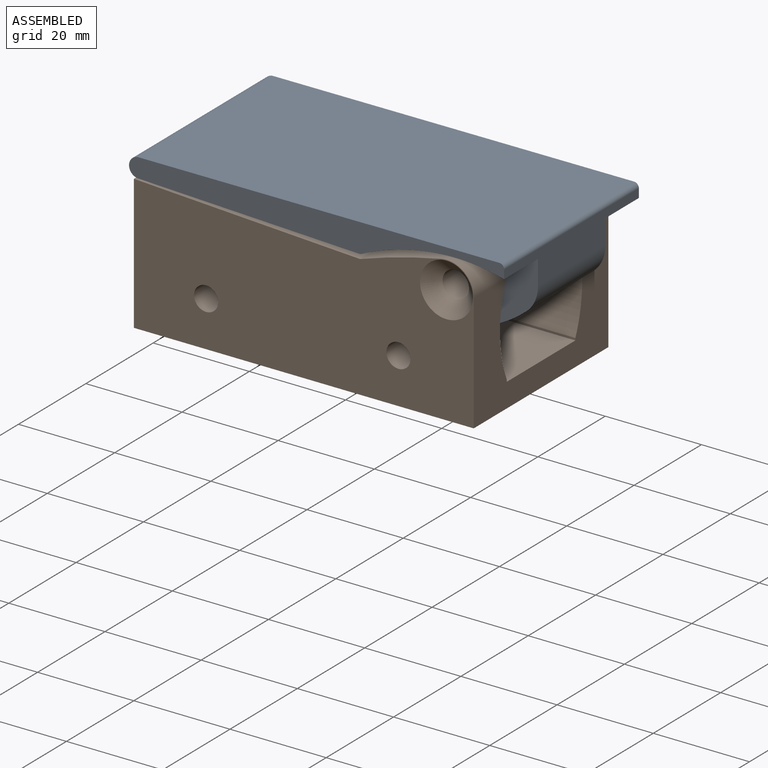
[diagram: assembled view]
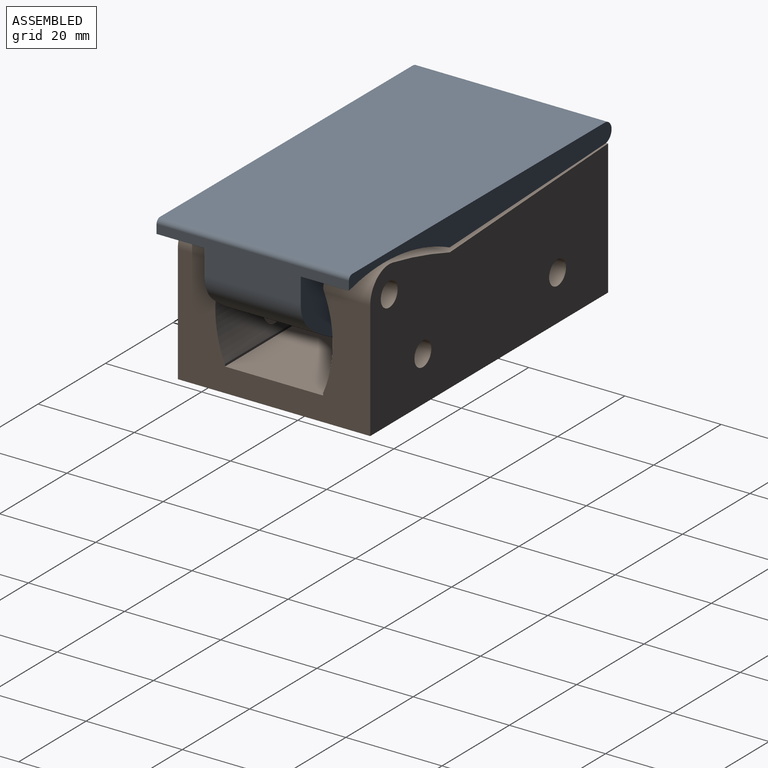
[diagram: assembled view, second angle]
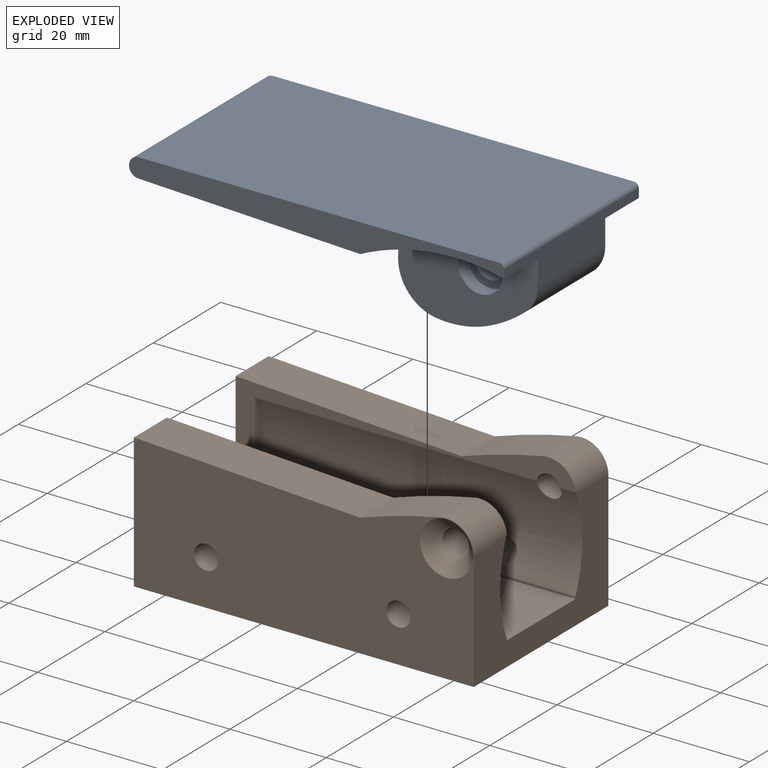
[diagram: exploded view]
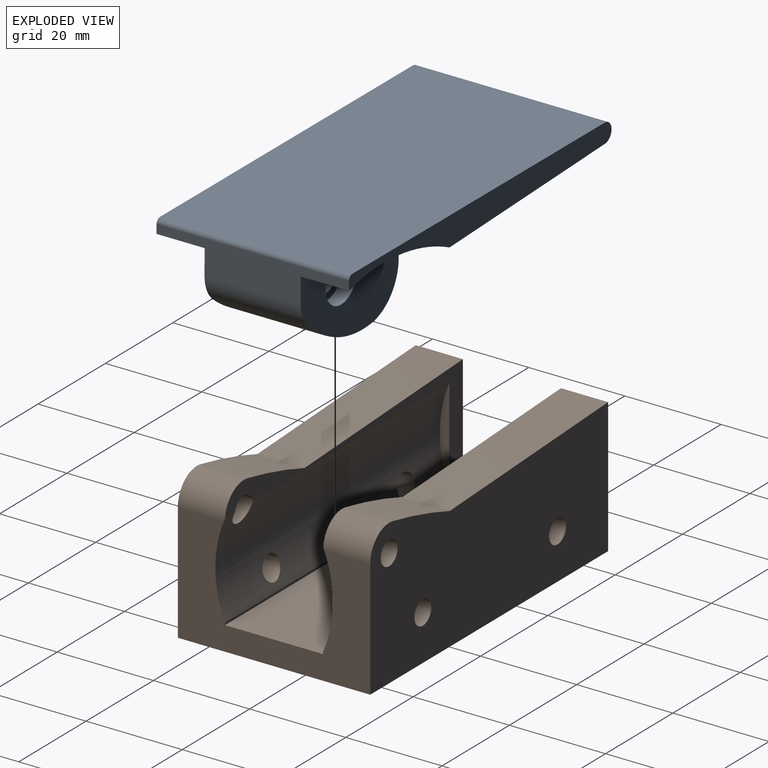
[diagram: exploded view, second angle]
FCSTD DOCUMENT  (FreeCAD 0.22R38506 (Git))
Label: push lever
License: All rights reserved
LicenseURL: http://en.wikipedia.org/wiki/All_rights_reserved
objects: Sketcher::SketchObject×15, PartDesign::Pocket×8, PartDesign::Body×7, PartDesign::Pad×6, PartDesign::Hole×4, PartDesign::SubShapeBinder×3, PartDesign::Line×3, Part::FeaturePython×2, PartDesign::Chamfer×2, App::Link×2, App::FeaturePython×2, PartDesign::AdditiveHelix×1, PartDesign::Mirrored×1, Assembly::JointGroup×1, Assembly::AssemblyObject×1, App::Part×1
note: 110 computed .brp shape members not serialized (recipe doc carries the construction recipe); baked Part::Feature solids carry a one-line shape summary decoded from their .brp

FEATURE [Sketcher::SketchObject] Sketch
  ArcFitTolerance = 0
  AttachmentSupport = -> [XZ_Plane]
  FullyConstrained = true
  MakeInternals = false
  MapMode = 5
  Placement = pos=(0,0,0) rot=(1,0,0;1.5708rad)
  sketch-geometry (15):
    g0: LineSegment StartX=-64 StartY=8 StartZ=0 EndX=11 EndY=8 EndZ=0
    g1: ArcOfCircle CenterX=11 CenterY=7 CenterZ=0 NormalX=0 NormalY=0 NormalZ=1 AngleXU=0 Radius=1 StartAngle=0 EndAngle=1.5708
    g2: LineSegment StartX=12 StartY=7 StartZ=0 EndX=12 EndY=-2.7e-15 EndZ=0
    g3: ArcOfCircle CenterX=5 CenterY=-9e-16 CenterZ=0 NormalX=0 NormalY=0 NormalZ=1 AngleXU=0 Radius=7 StartAngle=5.41052 EndAngle=6.28319
    g4: ArcOfCircle CenterX=-17.9719 CenterY=1.00094 CenterZ=0 NormalX=0 NormalY=0 NormalZ=1 AngleXU=0 Radius=1 StartAngle=6.24828 EndAngle=7.81064
    g5: LineSegment StartX=-17.9286 StartY=2 StartZ=0 EndX=-64.0867 EndY=4.00188 EndZ=0
    g6: ArcOfCircle CenterX=-64 CenterY=6 CenterZ=0 NormalX=0 NormalY=0 NormalZ=1 AngleXU=0 Radius=2 StartAngle=1.5708 EndAngle=4.66905
    g7: Circle CenterX=0 CenterY=0 CenterZ=0 NormalX=0 NormalY=0 NormalZ=1 AngleXU=0 Radius=3.1
    g8: LineSegment StartX=-16.9725 StartY=0.96604 StartZ=0 EndX=-17.0772 EndY=-2.03213 EndZ=0
    g9: LineSegment [constr] StartX=0 StartY=0 StartZ=0 EndX=12 EndY=-2.6e-15 EndZ=0
    g10: LineSegment [constr] StartX=0 StartY=0 StartZ=0 EndX=0 EndY=8 EndZ=0
    g11: LineSegment [constr] StartX=-17.9286 StartY=2 StartZ=0 EndX=-17.9286 EndY=8 EndZ=0
    g12: ArcOfCircle CenterX=-9.78412 CenterY=17.619 CenterZ=0 NormalX=0 NormalY=0 NormalZ=1 AngleXU=0 Radius=30 StartAngle=5.11381 EndAngle=5.41052
    g13: ArcOfCircle CenterX=-7.84005 CenterY=-2.3547 CenterZ=0 NormalX=0 NormalY=0 NormalZ=1 AngleXU=0 Radius=9.24281 StartAngle=3.10669 EndAngle=4.59022
    g14: ArcOfCircle CenterX=-6.374 CenterY=9.58529 CenterZ=0 NormalX=0 NormalY=0 NormalZ=1 AngleXU=0 Radius=21.2725 StartAngle=4.59022 EndAngle=5.11381
  constraints (39):
    c: Tangent(g0,g1) = 1.5708
    c: Tangent(g1,g2) = 1.5708
    c: Tangent(g5,g6) = 1.5708
    c: Tangent(g6,g0) = 1.5708
    c: Radius(g6) = 2
    c: Radius(g1) = 1
    c: Diameter(g7) = 6.2
    c: Distance(g8) = 3
    c: Perpendicular(g2,g9)
    c: PointOnObject(g10,g0)
    c: Perpendicular(g10,g0)
    c: Coincident(g2,g9)
    c: Perpendicular(g0,g2)
    c: Tangent(g3,g2) = 1.5708
    c: Angle(g0,g8) = 1.53589
    c: Coincident(g7,g-1)
    c: Coincident(g9,g10)
    c: Coincident(g9,g7)
    c: Distance(g9) = 12
    c: Tangent(g4,g5) = -1.5708
    c: Distance(g8,g7) = 17
    c: Radius(g4) = 1
    c: Tangent(g4,g8) = 1.5708
    c: Coincident(g11,g4)
    c: PointOnObject(g11,g0)
    c: Perpendicular(g0,g11)
    c: Distance(g11) = 6
    c: Distance(g10) = 8
    c: Distance(g0,g10) = 64
    c: Horizontal(g0)
    c: Tangent(g12,g3) = -1.5708
    c: Tangent(g13,g8) = -1.5708
    c: Angle(g3) = 0.872665
    c: Radius(g3) = 7
    c: Tangent(g14,g13) = -1.5708
    c: Tangent(g14,g12) = -1.5708
    c: Angle(g13) = 1.48353
    c: Angle(g14) = 0.523599
    c: Radius(g12) = 30
FEATURE [Sketcher::SketchObject] Sketch001
  ArcFitTolerance = 0
  AttachmentOffset = pos=(0,0,10) rot=(0,0,1;0rad)
  AttachmentSupport = -> [XZ_Plane]
  FullyConstrained = true
  MakeInternals = false
  MapMode = 5
  Placement = pos=(0,-10,2.2e-15) rot=(1,0,0;1.5708rad)
  expr: .AttachmentOffset.Base.z = -<<Sketch007>>.Placement.Base.y - <<Pocket001>>.Length
  sketch-geometry (1):
    g0: Circle CenterX=0 CenterY=0 CenterZ=0 NormalX=0 NormalY=0 NormalZ=1 AngleXU=0 Radius=4.6
  constraints (2):
    c: Diameter(g0) = 9.2
    c: Coincident(g0,g-1)
FEATURE [Sketcher::SketchObject] Sketch003  label="Bearing sketch"
  ArcFitTolerance = 0
  AttachmentSupport = -> [XZ_Plane001]
  FullyConstrained = true
  MakeInternals = false
  MapMode = 5
  Placement = pos=(0,0,0) rot=(1,0,0;1.5708rad)
  sketch-geometry (2):
    g0: Circle CenterX=0 CenterY=0 CenterZ=0 NormalX=0 NormalY=0 NormalZ=1 AngleXU=0 Radius=4.5
    g1: Circle CenterX=0 CenterY=0 CenterZ=0 NormalX=0 NormalY=0 NormalZ=1 AngleXU=0 Radius=2.5
  constraints (4):
    c: Diameter(g0) = 9
    c: Coincident(g0,g-1)
    c: Coincident(g1,g0)
    c: Diameter(g1) = 5
FEATURE [PartDesign::Pad] Pad001
  Direction = (0,-1,2e-16)
  Length = 3
  Length2 = 10
  Midplane = true
  Placement = pos=(0,0,0) rot=(1,0,0;1.5708rad)
  Profile = -> Sketch003
  ReferenceAxis = -> Sketch003 [N_Axis]
  Suppressed = false
  Type = 0
FEATURE [PartDesign::Body] Body001  label="Bearing"
  AllowCompound = false
  Group = -> [Sketch003,Pad001]
  Origin = -> Origin001
  Placement = pos=(0,-8.5,0) rot=(0,0,1;0rad)
  Tip = -> Pad001
FEATURE [PartDesign::Pad] Pad
  Direction = (0,-1,2e-16)
  Length = 40
  Length2 = 10
  Midplane = true
  Placement = pos=(0,0,0) rot=(1,0,0;1.5708rad)
  Profile = -> Sketch
  ReferenceAxis = -> Sketch [N_Axis]
  Suppressed = false
  Type = 0
FEATURE [Sketcher::SketchObject] Sketch005
  ArcFitTolerance = 0
  AttachmentSupport = -> [XZ_Plane003]
  FullyConstrained = true
  MakeInternals = false
  MapMode = 5
  Placement = pos=(0,0,0) rot=(1,0,0;1.5708rad)
  sketch-geometry (2):
    g0: Circle CenterX=0 CenterY=3.1 CenterZ=0 NormalX=0 NormalY=0 NormalZ=1 AngleXU=0 Radius=0.6
    g1: LineSegment [constr] StartX=0 StartY=2.5 StartZ=0 EndX=0 EndY=0 EndZ=0
  constraints (6):
    c: Diameter(g0) = 1.2
    c: PointOnObject(g0,g-2)
    c: PointOnObject(g1,g0)
    c: Coincident(g1,g-1)
    c: Vertical(g1)
    c: DistanceY(g1,g1) = 2.5
FEATURE [PartDesign::AdditiveHelix] AdditiveHelix
  Angle = 0
  Axis = (1,0,0)
  Base = (0,0,0)
  Growth = 0
  HasBeenEdited = true
  Height = 19
  LeftHanded = false
  Mode = 2
  Outside = false
  Pitch = 2.11111
  Placement = pos=(0,0,0) rot=(1,0,0;1.5708rad)
  Profile = -> Sketch005
  ReferenceAxis = -> Sketch005 [H_Axis]
  Suppressed = false
  Turns = 9
FEATURE [PartDesign::Body] Body003  label="Spring"
  AllowCompound = false
  Group = -> [Sketch005,AdditiveHelix]
  Origin = -> Origin003
  Placement = pos=(-53.5,0,-9.5) rot=(0,0,1;0rad)
  Tip = -> AdditiveHelix
FEATURE [Part::FeaturePython] Screw001  label="M6x40-Parafuso"  # Fasteners workbench fastener (typed FeaturePython)
  Placement = pos=(-17,0,-9.5) rot=(0,1,0;1.5708rad)
  diameter = 6
  invert = false
  leftHanded = false
  length = 13
  lengthCustom = 40
  matchOuter = false
  offset = 0
  thread = false
  type = 31
FEATURE [Part::FeaturePython] Washer  label="M6-Arruela"  # Fasteners workbench fastener (typed FeaturePython)
  Placement = pos=(-34,0,-9.5) rot=(0,1,0;1.5708rad)
  diameter = 7
  invert = false
  matchOuter = false
  offset = 0
  type = 7
FEATURE [Sketcher::SketchObject] Sketch007
  ArcFitTolerance = 0
  AttachmentOffset = pos=(0,0,20) rot=(0,0,1;0rad)
  AttachmentSupport = -> [XZ_Plane]
  FullyConstrained = false
  MakeInternals = false
  MapMode = 5
  Placement = pos=(0,-20,4.4e-15) rot=(1,0,0;1.5708rad)
  expr: .AttachmentOffset.Base.z = <<Pad>>.Length / 2
  sketch-geometry (5):
    g0: LineSegment StartX=12 StartY=5.18435 StartZ=0 EndX=12 EndY=-34.8156 EndZ=0
    g1: LineSegment StartX=12 StartY=-34.8156 StartZ=0 EndX=-17.9286 EndY=-34.8156 EndZ=0
    g2: LineSegment StartX=-17.9286 StartY=2 StartZ=0 EndX=-17.9286 EndY=-34.8156 EndZ=0
    g3: ArcOfCircle CenterX=1.93151 CenterY=-39.1603 CenterZ=0 NormalX=0 NormalY=0 NormalZ=1 AngleXU=0 Radius=45.7011 StartAngle=1.61307 EndAngle=2.02035
    g4: ArcOfCircle CenterX=1.69055 CenterY=-33.4643 CenterZ=0 NormalX=0 NormalY=0 NormalZ=1 AngleXU=0 Radius=40 StartAngle=1.31012 EndAngle=1.61307
  constraints (11):
    c: Coincident(g1,g0)
    c: Coincident(g1,g2)
    c: Perpendicular(g1,g0)
    c: Perpendicular(g2,g1)
    c: Distance(g0) = 40
    c: Coincident(g3,g2)
    c: PointOnObject(g3,g-2)
    c: Coincident(g4,g0)
    c: Tangent(g4,g3) = -1.5708
    c: Distance(g-1,g3) = 6.5
    c: Radius(g4) = 40
FEATURE [PartDesign::Pocket] Pocket001
  BaseFeature = -> Pad
  Direction = (0,1,-2e-16)
  Length = 10
  Length2 = 5
  Placement = pos=(0,0,0) rot=(1,0,0;1.5708rad)
  Profile = -> Sketch007
  ReferenceAxis = -> Sketch007 [N_Axis]
  Suppressed = false
  Type = 0
FEATURE [PartDesign::Pocket] Pocket
  BaseFeature = -> Pocket001
  Direction = (0,1,-2e-16)
  Length = 3
  Length2 = 5
  Placement = pos=(0,0,0) rot=(1,0,0;1.5708rad)
  Profile = -> Sketch001
  ReferenceAxis = -> Sketch001 [N_Axis]
  Suppressed = false
  Type = 0
FEATURE [PartDesign::Mirrored] Mirrored
  BaseFeature = -> Pocket
  MirrorPlane = -> XZ_Plane
  Originals = -> [Pocket,Pocket001]
  Placement = pos=(0,0,0) rot=(1,0,0;1.5708rad)
  Suppressed = false
  TransformMode = 0
FEATURE [Sketcher::SketchObject] Sketch009
  ArcFitTolerance = 0
  AttachmentSupport = -> [XZ_Plane002]
  FullyConstrained = true
  MakeInternals = false
  MapMode = 5
  Placement = pos=(0,0,0) rot=(1,0,0;1.5708rad)
  sketch-geometry (7):
    g0: LineSegment StartX=-18 StartY=1 StartZ=0 EndX=-65 EndY=3.5 EndZ=0
    g1: LineSegment StartX=-65 StartY=3.5 StartZ=0 EndX=-65 EndY=-24.5 EndZ=0
    g2: LineSegment StartX=-65 StartY=-24.5 StartZ=0 EndX=5.65 EndY=-24.5 EndZ=0
    g3: LineSegment StartX=5.65 StartY=-24.5 StartZ=0 EndX=5.65 EndY=0 EndZ=0
    g4: ArcOfCircle CenterX=22.8133 CenterY=-117.149 CenterZ=0 NormalX=0 NormalY=0 NormalZ=1 AngleXU=0 Radius=125 StartAngle=1.76313 EndAngle=1.9034
    g5: Circle [constr] CenterX=0 CenterY=0 CenterZ=0 NormalX=0 NormalY=0 NormalZ=1 AngleXU=0 Radius=5.65
    g6: ArcOfCircle CenterX=0 CenterY=0 CenterZ=0 NormalX=0 NormalY=0 NormalZ=1 AngleXU=0 Radius=5.65 StartAngle=0 EndAngle=1.76313
  constraints (19):
    c: Coincident(g0,g1)
    c: Vertical(g1)
    c: Coincident(g1,g2)
    c: Horizontal(g2)
    c: Coincident(g2,g3)
    c: Coincident(g4,g0)
    c: Radius(g4) = 125
    c: DistanceY(g1,g1) = 28  'height'
    c: DistanceX(g0,g0) = 47
    c: DistanceY(g2,g-1) = 24.5  'bottom'
    c: DistanceY(g-1,g0) = 1
    c: Coincident(g5,g-1)
    c: Coincident(g6,g5)
    c: PointOnObject(g6,g5)
    c: Tangent(g6,g4) = -1.5708
    c: Diameter(g5) = 11.3
    c: Tangent(g3,g6) = -1.5708
    c: DistanceX(g1,g5) = 65  'x1'
    c: Perpendicular(g2,g3)
FEATURE [PartDesign::Pad] Pad002
  Direction = (0,-1,2e-16)
  Length = 40
  Length2 = 10
  Midplane = true
  Placement = pos=(0,0,0) rot=(1,0,0;1.5708rad)
  Profile = -> Sketch009
  ReferenceAxis = -> Sketch009 [N_Axis]
  Suppressed = false
  Type = 0
  expr: Length = <<Pad>>.Length
FEATURE [Sketcher::SketchObject] Sketch011  label="Lever axis hole sketch"
  ArcFitTolerance = 0
  AttachmentOffset = pos=(0,0,20) rot=(0,0,1;0rad)
  AttachmentSupport = -> [XZ_Plane002]
  FullyConstrained = true
  MakeInternals = false
  MapMode = 5
  Placement = pos=(0,-20,4.4e-15) rot=(1,0,0;1.5708rad)
  expr: .AttachmentOffset.Base.z = <<Pad002>>.Length / 2
  sketch-geometry (1):
    g0: Circle CenterX=0 CenterY=0 CenterZ=0 NormalX=0 NormalY=0 NormalZ=1 AngleXU=0 Radius=2.5
  constraints (2):
    c: Coincident(g0,g-1)
    c: Diameter(g0) = 5
FEATURE [Sketcher::SketchObject] Sketch015  label="Guide rail sketch"
  ArcFitTolerance = 0
  AttachmentOffset = pos=(0,0,-61) rot=(0,0,1;0rad)
  AttachmentSupport = -> [YZ_Plane002]
  FullyConstrained = false
  MakeInternals = false
  MapMode = 5
  Placement = pos=(-61,0,0) rot=(0.57735,0.57735,0.57735;2.0944rad)
  expr: .AttachmentOffset.Base.z = -<<Sketch009>>.Constraints.x1 + 4 mm
  sketch-geometry (4):
    g0: ArcOfCircle CenterX=12.8021 CenterY=-9.25 CenterZ=0 NormalX=0 NormalY=0 NormalZ=1 AngleXU=0 Radius=25 StartAngle=2.71914 EndAngle=3.56405
    g1: ArcOfCircle CenterX=-12.8021 CenterY=-9.25 CenterZ=0 NormalX=0 NormalY=0 NormalZ=1 AngleXU=0 Radius=25 StartAngle=5.86073 EndAngle=6.70564
    g2: LineSegment StartX=10 StartY=-19.5 StartZ=0 EndX=-10 EndY=-19.5 EndZ=0
    g3: LineSegment StartX=-10 StartY=1 StartZ=0 EndX=10 EndY=1 EndZ=0
  constraints (10):
    c: Coincident(g0,g2)
    c: Coincident(g1,g2)
    c: Symmetric(g1,g0,g-2)
    c: Radius(g1) = 25
    c: Equal(g0,g1)
    c: DistanceX(g2,g2) = 20
    c: Horizontal(g1,g0)
    c: Vertical(g0,g0)
    c: Coincident(g3,g0)
    c: Coincident(g3,g1)
FEATURE [Sketcher::SketchObject] Sketch016
  ArcFitTolerance = 0
  AttachmentSupport = -> [YZ_Plane002]
  FullyConstrained = false
  MakeInternals = false
  MapMode = 5
  Placement = pos=(0,0,0) rot=(0.57735,0.57735,0.57735;2.0944rad)
  expr: .Constraints.width = <<Pad>>.Length - 2 * <<Pocket001>>.Length + 0.4 mm
  sketch-geometry (4):
    g0: LineSegment StartX=-10.2 StartY=50.5 StartZ=0 EndX=-10.2 EndY=-19.5 EndZ=0
    g1: LineSegment StartX=-10.2 StartY=-19.5 StartZ=0 EndX=10.2 EndY=-19.5 EndZ=0
    g2: LineSegment StartX=10.2 StartY=-19.5 StartZ=0 EndX=10.2 EndY=50.5 EndZ=0
    g3: LineSegment StartX=10.2 StartY=50.5 StartZ=0 EndX=-10.2 EndY=50.5 EndZ=0
  constraints (10):
    c: Coincident(g0,g1)
    c: Coincident(g1,g2)
    c: Coincident(g2,g3)
    c: Coincident(g3,g0)
    c: Vertical(g0)
    c: Vertical(g2)
    c: Horizontal(g1)
    c: Symmetric(g2,g0,g-2)
    c: DistanceY(g2,g2) = 70
    c: DistanceX(g1,g1) = 20.4  'width'
FEATURE [PartDesign::Pocket] Pocket006
  BaseFeature = -> Pad002
  Direction = (-1,0,0)
  Length = 5
  Length2 = 5
  Midplane = true
  Placement = pos=(0,0,0) rot=(1,0,0;1.5708rad)
  Profile = -> Sketch016
  ReferenceAxis = -> Sketch016 [N_Axis]
  Suppressed = false
  Type = 1
FEATURE [PartDesign::Pocket] Pocket003  label="Lever axis hole"
  BaseFeature = -> Pocket006
  Direction = (0,1,-2e-16)
  Length = 5
  Length2 = 5
  Placement = pos=(0,0,0) rot=(1,0,0;1.5708rad)
  Profile = -> Sketch011
  ReferenceAxis = -> Sketch011 [N_Axis]
  Suppressed = false
  Type = 1
FEATURE [PartDesign::Hole] Hole001  label="Lever axis hole enlarge one side"
  BaseFeature = -> Pocket003
  CustomThreadClearance = 0
  Depth = 20
  DepthType = 0
  Diameter = 5.5
  DrillForDepth = false
  DrillPoint = 1
  DrillPointAngle = 118
  HoleCutCountersinkAngle = 90
  HoleCutCustomValues = false
  HoleCutDepth = 0
  HoleCutDiameter = 11
  HoleCutType = 2
  ModelThread = false
  Placement = pos=(0,0,0) rot=(1,0,0;1.5708rad)
  Profile = -> Sketch011
  Suppressed = false
  Tapered = false
  TaperedAngle = 90
  ThreadClass = 0
  ThreadDepth = 20
  ThreadDepthType = 0
  ThreadDirection = 0
  ThreadFit = 0
  ThreadSize = 0
  ThreadType = 0
  Threaded = false
  UseCustomThreadClearance = false
  expr: Depth = <<Pad002>>.Length / 2
FEATURE [PartDesign::Pocket] Pocket005  label="Guide rail pocket"
  BaseFeature = -> Hole001
  Direction = (-1,0,0)
  Length = 5
  Length2 = 5
  Placement = pos=(0,0,0) rot=(1,0,0;1.5708rad)
  Profile = -> Sketch015
  ReferenceAxis = -> Sketch015 [N_Axis]
  Refine = true
  Reversed = true
  Suppressed = false
  Type = 1
FEATURE [PartDesign::SubShapeBinder] Binder001
  BindCopyOnChange = 0
  BindMode = 0
  ClaimChildren = false
  Context = -> Part [Body005.Binder001.]
  Fuse = false
  MakeFace = true
  Offset = -0.15
  OffsetFill = false
  OffsetIntersection = false
  OffsetJoinType = 0
  OffsetOpenResult = false
  PartialLoad = false
  Placement = pos=(-12,0,0) rot=(0,0,1;0rad)
  Relative = true
  Support = -> [Body002[Sketch015.]]
  _Version = 2
FEATURE [Sketcher::SketchObject] Sketch013
  ArcFitTolerance = 0
  AttachmentOffset = pos=(0,0,22) rot=(0,0,1;0rad)
  AttachmentSupport = -> [Binder001]
  ExternalGeometry = -> [Binder001]
  FullyConstrained = true
  MakeInternals = false
  MapMode = 5
  Placement = pos=(-51,0,0) rot=(0.57735,0.57735,0.57735;2.0944rad)
  expr: .AttachmentOffset.Base.z = <<Pad003>>.Length
  sketch-geometry (2):
    g0: Circle CenterX=0 CenterY=-9.25 CenterZ=0 NormalX=0 NormalY=0 NormalZ=1 AngleXU=0 Radius=3.5
    g1: LineSegment [constr] StartX=0 StartY=0.85 StartZ=0 EndX=0 EndY=-19.35 EndZ=0
  constraints (6):
    c: PointOnObject(g0,g-2)
    c: Diameter(g0) = 7
    c: PointOnObject(g1,g-2)
    c: Symmetric(g1,g1,g0)
    c: PointOnObject(g1,g-3)
    c: PointOnObject(g1,g-4)
FEATURE [PartDesign::Pad] Pad003
  Direction = (1,0,0)
  Length = 22
  Length2 = 10
  Placement = pos=(-12,0,0) rot=(0,0,1;0rad)
  Profile = -> Binder001
  Suppressed = false
  Type = 0
FEATURE [PartDesign::Hole] Hole002
  BaseFeature = -> Pad003
  CustomThreadClearance = 0
  Depth = 75.2743
  DepthType = 1
  Diameter = 6
  DrillForDepth = false
  DrillPoint = 1
  DrillPointAngle = 118
  HoleCutCountersinkAngle = 90
  HoleCutCustomValues = false
  HoleCutDepth = 4
  HoleCutDiameter = 16
  HoleCutType = 1
  ModelThread = false
  Placement = pos=(-12,0,0) rot=(0,0,1;0rad)
  Profile = -> Sketch013
  Suppressed = false
  Tapered = false
  TaperedAngle = 90
  ThreadClass = 0
  ThreadDepth = 75.2743
  ThreadDepthType = 0
  ThreadDirection = 0
  ThreadFit = 0
  ThreadSize = 0
  ThreadType = 0
  Threaded = false
  UseCustomThreadClearance = false
FEATURE [PartDesign::Chamfer] Chamfer
  Angle = 45
  Base = -> Hole002 [?Face7]
  BaseFeature = -> Hole002
  ChamferType = 0
  FlipDirection = false
  Placement = pos=(-12,0,0) rot=(0,0,1;0rad)
  Size = 0.3
  Size2 = 1
  SupportTransform = false
  Suppressed = false
  UseAllEdges = true
FEATURE [PartDesign::SubShapeBinder] Binder002
  BindCopyOnChange = 0
  BindMode = 0
  ClaimChildren = false
  Context = -> Part [Body007.Binder002.]
  Fuse = false
  MakeFace = true
  Offset = -0.15
  OffsetFill = false
  OffsetIntersection = false
  OffsetJoinType = 0
  OffsetOpenResult = false
  PartialLoad = false
  Placement = pos=(18.8,0,0) rot=(0,0,1;0rad)
  Relative = true
  Support = -> [Body002[Sketch015.]]
  _Version = 2
FEATURE [Sketcher::SketchObject] Sketch019
  ArcFitTolerance = 0
  AttachmentSupport = -> [XZ_Plane007]
  ExternalGeometry = -> [Binder002]
  FullyConstrained = true
  MakeInternals = false
  MapMode = 5
  Placement = pos=(0,0,0) rot=(1,0,0;1.5708rad)
  expr: Constraints[10] = <<Pad004>>.Length
  sketch-geometry (6):
    g0: LineSegment StartX=-20.2567 StartY=0.492788 StartZ=0 EndX=-17.2 EndY=-3.15 EndZ=0
    g1: ArcOfCircle CenterX=-21.0227 CenterY=-0.15 CenterZ=0 NormalX=0 NormalY=0 NormalZ=1 AngleXU=0 Radius=1 StartAngle=0.698132 EndAngle=1.5708
    g2: LineSegment StartX=-21.0227 StartY=0.85 StartZ=0 EndX=-42.2 EndY=0.85 EndZ=0
    g3: LineSegment StartX=-42.2 StartY=0.85 StartZ=0 EndX=-42.2 EndY=10.85 EndZ=0
    g4: LineSegment StartX=-42.2 StartY=10.85 StartZ=0 EndX=-17.2 EndY=10.85 EndZ=0
    g5: LineSegment StartX=-17.2 StartY=10.85 StartZ=0 EndX=-17.2 EndY=-3.15 EndZ=0
  constraints (16):
    c: Tangent(g1,g0) = 1.5708
    c: Radius(g1) = 1
    c: Coincident(g3,g2)
    c: Vertical(g3)
    c: Coincident(g4,g3)
    c: Horizontal(g4)
    c: Coincident(g5,g4)
    c: Coincident(g5,g0)
    c: Vertical(g5)
    c: Horizontal(g2)
    c: DistanceX(g4,g4) = 25
    c: Angle(g5,g0) = 0.698132
    c: DistanceY(g3,g3) = 10
    c: DistanceY(g5,g5) = 14
    c: Tangent(g2,g1) = -1.5708
    c: Coincident(g2,g-3)
FEATURE [PartDesign::SubShapeBinder] Binder003
  BindCopyOnChange = 0
  BindMode = 0
  ClaimChildren = false
  Context = -> Part [Body007.Binder003.]
  Fuse = false
  MakeFace = true
  OffsetFill = false
  OffsetIntersection = false
  OffsetJoinType = 0
  OffsetOpenResult = false
  PartialLoad = false
  Placement = pos=(-25,0,0) rot=(0,0,1;0rad)
  Relative = true
  Support = -> [Sketch020]
  _Version = 2
  expr: .Placement.Base.x = -<<Pad004>>.Length
FEATURE [PartDesign::Pad] Pad004
  Direction = (1,0,0)
  Length = 25
  Length2 = 10
  Placement = pos=(18.8,0,0) rot=(0,0,1;0rad)
  Profile = -> Binder002
  Suppressed = false
  Type = 0
FEATURE [PartDesign::Hole] Hole004
  BaseFeature = -> Pad004
  CustomThreadClearance = 0
  Depth = 71.9523
  DepthType = 1
  Diameter = 5
  DrillForDepth = false
  DrillPoint = 0
  DrillPointAngle = 118
  HoleCutCountersinkAngle = 90
  HoleCutCustomValues = false
  HoleCutDepth = 10
  HoleCutDiameter = 16.1
  HoleCutType = 1
  ModelThread = false
  Placement = pos=(18.8,0,0) rot=(0,0,1;0rad)
  Profile = -> Binder003
  Reversed = true
  Suppressed = false
  Tapered = false
  TaperedAngle = 90
  ThreadClass = 0
  ThreadDepth = 71.9523
  ThreadDepthType = 0
  ThreadDirection = 0
  ThreadFit = 0
  ThreadSize = 0
  ThreadType = 0
  Threaded = false
  UseCustomThreadClearance = false
FEATURE [PartDesign::Chamfer] Chamfer002
  Angle = 45
  Base = -> Hole004 [?Face7]
  BaseFeature = -> Hole004
  ChamferType = 0
  FlipDirection = false
  Placement = pos=(18.8,0,0) rot=(0,0,1;0rad)
  Size = 0.3
  Size2 = 1
  SupportTransform = false
  Suppressed = false
  UseAllEdges = true
FEATURE [Sketcher::SketchObject] Sketch020
  ArcFitTolerance = 0
  AttachmentOffset = pos=(0,0,25) rot=(0,0,1;0rad)
  AttachmentSupport = -> [Binder002]
  ExternalGeometry = -> [Binder002]
  FullyConstrained = true
  MakeInternals = false
  MapMode = 5
  Placement = pos=(-17.2,0,0) rot=(0.57735,0.57735,0.57735;2.0944rad)
  expr: .AttachmentOffset.Base.z = <<Pad004>>.Length
  sketch-geometry (2):
    g0: Circle CenterX=0 CenterY=-9.25 CenterZ=0 NormalX=0 NormalY=0 NormalZ=1 AngleXU=0 Radius=3.5
    g1: LineSegment [constr] StartX=0 StartY=0.85 StartZ=0 EndX=0 EndY=-19.35 EndZ=0
  constraints (6):
    c: PointOnObject(g0,g-2)
    c: Diameter(g0) = 7
    c: PointOnObject(g1,g-2)
    c: Symmetric(g1,g1,g0)
    c: PointOnObject(g1,g-3)
    c: PointOnObject(g1,g-4)
FEATURE [PartDesign::Hole] Hole003
  BaseFeature = -> Chamfer002
  CustomThreadClearance = 0
  Depth = 73.3723
  DepthType = 1
  Diameter = 5
  DrillForDepth = false
  DrillPoint = 1
  DrillPointAngle = 118
  HoleCutCountersinkAngle = 90
  HoleCutCustomValues = false
  HoleCutDepth = 1.6
  HoleCutDiameter = 10.5
  HoleCutType = 2
  ModelThread = false
  Placement = pos=(18.8,0,0) rot=(0,0,1;0rad)
  Profile = -> Sketch020
  Suppressed = false
  Tapered = false
  TaperedAngle = 90
  ThreadClass = 0
  ThreadDepth = 73.3723
  ThreadDepthType = 0
  ThreadDirection = 0
  ThreadFit = 0
  ThreadSize = 0
  ThreadType = 0
  Threaded = false
  UseCustomThreadClearance = false
FEATURE [PartDesign::Pocket] Pocket009
  BaseFeature = -> Hole003
  Direction = (0,1,-2e-16)
  Length = 5
  Length2 = 5
  Midplane = true
  Placement = pos=(18.8,0,0) rot=(0,0,1;0rad)
  Profile = -> Sketch019
  ReferenceAxis = -> Sketch019 [N_Axis]
  Suppressed = false
  Type = 1
FEATURE [PartDesign::Body] Body007  label="Pushblock inner"
  AllowCompound = false
  Group = -> [Pad004,Binder002,Hole004,Chamfer002,Binder003,Sketch020,Hole003,Sketch019,Pocket009]
  Origin = -> Origin007
  Tip = -> Pocket009
FEATURE [Sketcher::SketchObject] Sketch021
  ArcFitTolerance = 0
  AttachmentOffset = pos=(0,0,-61) rot=(0,0,1;0rad)
  AttachmentSupport = -> [YZ_Plane005]
  FullyConstrained = true
  MakeInternals = false
  MapMode = 5
  Placement = pos=(-61,0,0) rot=(0.57735,0.57735,0.57735;2.0944rad)
  expr: .AttachmentOffset.Base.z = <<Guide rail sketch>>.Placement.Base.x
  expr: Constraints[16] = <<Pad>>.Length - 2 * <<Pocket001>>.Length
  sketch-geometry (8):
    g0: LineSegment StartX=-50 StartY=50 StartZ=0 EndX=-50 EndY=-50 EndZ=0
    g1: LineSegment StartX=-50 StartY=-50 StartZ=0 EndX=50 EndY=-50 EndZ=0
    g2: LineSegment StartX=50 StartY=-50 StartZ=0 EndX=50 EndY=50 EndZ=0
    g3: LineSegment StartX=50 StartY=50 StartZ=0 EndX=-50 EndY=50 EndZ=0
    g4: LineSegment StartX=-10 StartY=30 StartZ=0 EndX=-10 EndY=-30 EndZ=0
    g5: LineSegment StartX=-10 StartY=-30 StartZ=0 EndX=10 EndY=-30 EndZ=0
    g6: LineSegment StartX=10 StartY=-30 StartZ=0 EndX=10 EndY=30 EndZ=0
    g7: LineSegment StartX=10 StartY=30 StartZ=0 EndX=-10 EndY=30 EndZ=0
  constraints (22):
    c: Coincident(g0,g1)
    c: Coincident(g1,g2)
    c: Coincident(g2,g3)
    c: Coincident(g3,g0)
    c: Vertical(g0)
    c: Vertical(g2)
    c: Horizontal(g1)
    c: Horizontal(g3)
    c: Coincident(g4,g5)
    c: Coincident(g5,g6)
    c: Coincident(g6,g7)
    c: Coincident(g7,g4)
    c: Vertical(g4)
    c: Vertical(g6)
    c: Horizontal(g5)
    c: Horizontal(g7)
    c: DistanceX(g7,g7) = 20
    c: Symmetric(g4,g5,g-1)
    c: DistanceY(g6,g6) = 60
    c: Symmetric(g0,g2,g-1)
    c: DistanceY(g6,g2) = 20
    c: Equal(g3,g0)
FEATURE [PartDesign::Pocket] Pocket010
  BaseFeature = -> Chamfer
  Direction = (-1,0,0)
  Length = 5
  Length2 = 5
  Placement = pos=(-12,0,0) rot=(0,0,1;0rad)
  Profile = -> Sketch021
  ReferenceAxis = -> Sketch021 [N_Axis]
  Suppressed = false
  Type = 1
FEATURE [PartDesign::Body] Body005  label="Pushblock"
  AllowCompound = false
  Group = -> [Pad003,Binder001,Sketch013,Hole002,Chamfer,Sketch021,Pocket010]
  Origin = -> Origin005
  Tip = -> Pocket010
FEATURE [Sketcher::SketchObject] Sketch022  label="Carriage mounting holes sketch"
  ArcFitTolerance = 0
  AttachmentSupport = -> [XZ_Plane002]
  FullyConstrained = true
  MakeInternals = false
  MapMode = 5
  Placement = pos=(0,0,0) rot=(1,0,0;1.5708rad)
  sketch-geometry (2):
    g0: Circle CenterX=-10 CenterY=-15 CenterZ=0 NormalX=0 NormalY=0 NormalZ=1 AngleXU=0 Radius=2.5
    g1: Circle CenterX=-50 CenterY=-15 CenterZ=0 NormalX=0 NormalY=0 NormalZ=1 AngleXU=0 Radius=2.5
  constraints (6):
    c: Equal(g1,g0)
    c: Diameter(g0) = 5
    c: DistanceX(g1,g-1) = 50
    c: Horizontal(g1,g0)
    c: DistanceY(g1,g-1) = 15
    c: DistanceX(g1,g0) = 40
FEATURE [PartDesign::Line] DatumLine  label="AxisDatumLine001"
  AttacherType = Attacher::AttachEngineLine
  AttachmentSupport = -> [Y_Axis]
  Length = 20
  MapMode = 24
  Placement = pos=(0,0,0) rot=(1,0,0;1.5708rad)
  ResizeMode = 0
FEATURE [PartDesign::Body] Body  label="Lever"
  AllowCompound = false
  Group = -> [Sketch,Sketch001,Pad,Pocket001,Sketch007,Pocket,Mirrored,DatumLine]
  Origin = -> Origin
  Tip = -> Mirrored
FEATURE [PartDesign::Line] DatumLine001  label="AxisDatumLine"
  AttacherType = Attacher::AttachEngineLine
  AttachmentSupport = -> [Y_Axis002]
  Length = 20
  MapMode = 24
  Placement = pos=(0,0,0) rot=(1,0,0;1.5708rad)
  ResizeMode = 0
FEATURE [App::Link] Spring_carriage  label="Spring carriage001"
  LinkPlacement = pos=(-39.6657,-4.72997,23.1228) rot=(0,0,1;0rad)
  LinkedObject = -> Body002
  Placement = pos=(-39.6657,-4.72997,23.1228) rot=(0,0,1;0rad)
FEATURE [App::FeaturePython] GroundedJoint  # Assembly grounded joint (typed FeaturePython)
  ObjectToGround = -> Spring_carriage
  Placement = pos=(-39.6657,-4.72997,23.1228) rot=(0,0,1;0rad)
FEATURE [App::Link] Lever  label="Lever001"
  LinkPlacement = pos=(-39.6657,-4.72997,23.1228) rot=(0,-1,0;0.003021rad)
  LinkedObject = -> Body
  Placement = pos=(-39.6657,-4.72997,23.1228) rot=(0,-1,0;0.003021rad)
FEATURE [App::FeaturePython] Revolute  # Assembly joint (typed FeaturePython)
  Activated = true
  AngleMax = 0
  AngleMin = 0
  Detach1 = false
  Detach2 = false
  Distance = 0
  Distance2 = 0
  EnableAngleMax = false
  EnableAngleMin = false
  EnableLengthMax = false
  EnableLengthMin = false
  EnableLimits = false
  JointType = 1 (Revolute)
  LengthMax = 0
  LengthMin = 0
  Offset = (0,0,0)
  Reference1 = -> Assembly [Lever.DatumLine.,Lever.DatumLine.]
  Reference2 = -> Assembly [Spring_carriage.DatumLine001.,Spring_carriage.DatumLine001.]
  Rotation = 0
FEATURE [Assembly::JointGroup] Joints
  Group = -> [GroundedJoint,Revolute]
FEATURE [Assembly::AssemblyObject] Assembly
  Group = -> [Joints,Spring_carriage,GroundedJoint,Lever,Revolute]
  Origin = -> Origin008
  Type = Assembly
FEATURE [PartDesign::Line] DatumLine002  label="GuideRailDatumLine"
  AttacherType = Attacher::AttachEngineLine
  AttachmentOffset = pos=(0,-9.5,0) rot=(0,0,1;0rad)
  AttachmentSupport = -> [X_Axis002]
  Length = 20
  MapMode = 29
  Placement = pos=(0,0,-9.5) rot=(0.57735,0.57735,0.57735;2.0944rad)
  ResizeMode = 0
FEATURE [Sketcher::SketchObject] Sketch023  label="Bearing sketch001"
  ArcFitTolerance = 0
  AttachmentSupport = -> [XZ_Plane009]
  FullyConstrained = true
  MakeInternals = false
  MapMode = 5
  Placement = pos=(0,0,0) rot=(1,0,0;1.5708rad)
  sketch-geometry (2):
    g0: Circle CenterX=0 CenterY=0 CenterZ=0 NormalX=0 NormalY=0 NormalZ=1 AngleXU=0 Radius=4.5
    g1: Circle CenterX=0 CenterY=0 CenterZ=0 NormalX=0 NormalY=0 NormalZ=1 AngleXU=0 Radius=2.5
  constraints (4):
    c: Diameter(g0) = 9
    c: Coincident(g0,g-1)
    c: Coincident(g1,g0)
    c: Diameter(g1) = 5
FEATURE [PartDesign::Pad] Pad005
  Direction = (0,-1,2e-16)
  Length = 3
  Length2 = 10
  Midplane = true
  Placement = pos=(0,0,0) rot=(1,0,0;1.5708rad)
  Profile = -> Sketch023
  ReferenceAxis = -> Sketch023 [N_Axis]
  Suppressed = false
  Type = 0
FEATURE [PartDesign::Body] Body008  label="Bearing001"
  AllowCompound = false
  Group = -> [Sketch023,Pad005]
  Origin = -> Origin009
  Placement = pos=(0,8.5,0) rot=(0,0,1;0rad)
  Tip = -> Pad005
FEATURE [PartDesign::Pocket] Pocket011  label="Carriage mounting holes"
  BaseFeature = -> Pocket005
  Direction = (0,1,-2e-16)
  Length = 5
  Length2 = 5
  Midplane = true
  Placement = pos=(0,0,0) rot=(1,0,0;1.5708rad)
  Profile = -> Sketch022
  ReferenceAxis = -> Sketch022 [N_Axis]
  Suppressed = false
  Type = 1
FEATURE [PartDesign::Body] Body002  label="Spring carriage"
  AllowCompound = false
  Group = -> [Sketch009,Pad002,Pocket006,Sketch016,Sketch011,Pocket003,Hole001,Sketch015,Pocket005,Sketch022,DatumLine001,DatumLine002,Pocket011]
  Origin = -> Origin002
  Tip = -> Pocket011
FEATURE [App::Part] Part  label="Lever Block"
  Group = -> [Body007,Body001,Body,Body005,Body002,Washer,Body008,Screw001,Body003]
  Origin = -> Origin010
